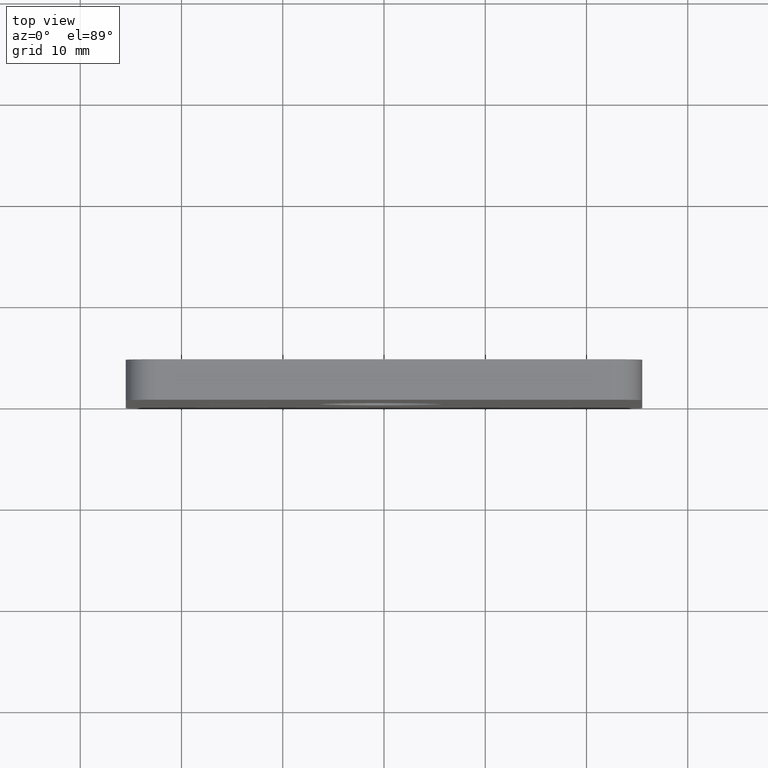
[diagram: clean part render]
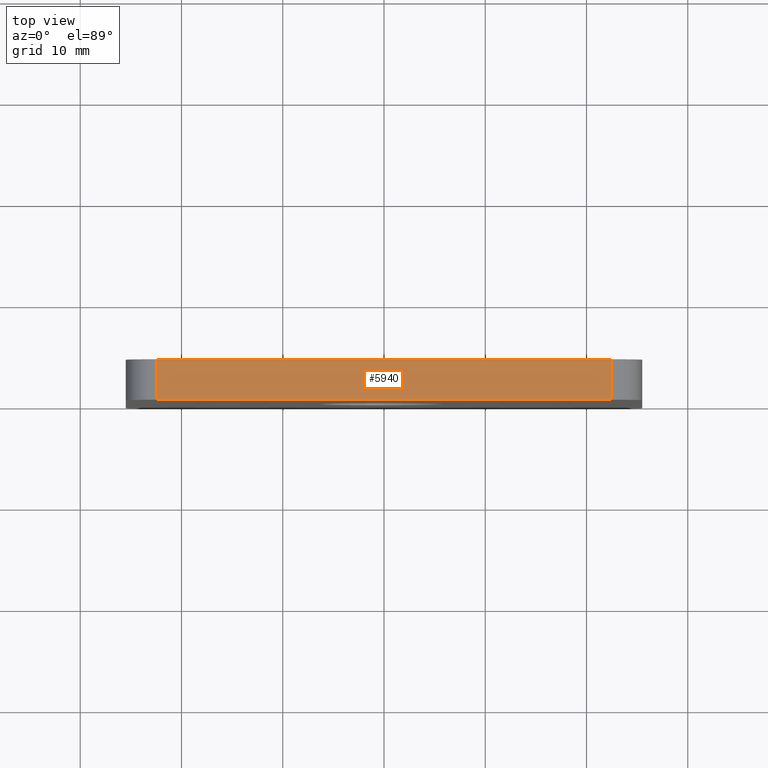
[diagram: same view with one face highlighted and labeled with its STEP entity id]
A machine part, top view. The second image highlights one B-rep face of the part: STEP entity #5940.
In plain terms, the highlighted planar face has unit normal (0, 0, -1).
Its self-contained STEP definition (entity closure, byte-faithful):
#100 = DIRECTION ( 'NONE',  ( 1.000000000000000000, 0.0000000000000000000, 0.0000000000000000000 ) ) ;
#144 = CARTESIAN_POINT ( 'NONE',  ( -25.49999999999999600, 4.000000000000000000, 25.49999999999999600 ) ) ;
#205 = VECTOR ( 'NONE', #10202, 1000.000000000000000 ) ;
#350 = CARTESIAN_POINT ( 'NONE',  ( 22.50000000000000700, 4.000000000000000000, 25.49999999999999600 ) ) ;
#557 = LINE ( 'NONE', #3613, #6849 ) ;
#578 = DIRECTION ( 'NONE',  ( -0.0000000000000000000, 1.000000000000000000, -0.0000000000000000000 ) ) ;
#750 = EDGE_CURVE ( 'NONE', #10056, #11414, #2006, .T. ) ;
#1486 = CARTESIAN_POINT ( 'NONE',  ( 22.50000000000000700, 0.0000000000000000000, 25.49999999999999600 ) ) ;
#1661 = ORIENTED_EDGE ( 'NONE', *, *, #6077, .T. ) ;
#2006 = LINE ( 'NONE', #144, #6017 ) ;
#3181 = EDGE_CURVE ( 'NONE', #3247, #11414, #15566, .T. ) ;
#3247 = VERTEX_POINT ( 'NONE', #1486 ) ;
#3613 = CARTESIAN_POINT ( 'NONE',  ( -25.49999999999999600, 0.0000000000000000000, 25.49999999999999600 ) ) ;
#4865 = VERTEX_POINT ( 'NONE', #11165 ) ;
#5940 = ADVANCED_FACE ( 'NONE', ( #6511 ), #10646, .F. ) ;
#6017 = VECTOR ( 'NONE', #7404, 1000.000000000000000 ) ;
#6077 = EDGE_CURVE ( 'NONE', #10056, #4865, #10334, .T. ) ;
#6511 = FACE_OUTER_BOUND ( 'NONE', #10383, .T. ) ;
#6849 = VECTOR ( 'NONE', #100, 1000.000000000000000 ) ;
#6944 = CARTESIAN_POINT ( 'NONE',  ( -22.49999999999999600, 4.000000000000000000, 25.49999999999999600 ) ) ;
#7325 = VECTOR ( 'NONE', #578, 1000.000000000000000 ) ;
#7404 = DIRECTION ( 'NONE',  ( 1.000000000000000000, 0.0000000000000000000, 0.0000000000000000000 ) ) ;
#7455 = ORIENTED_EDGE ( 'NONE', *, *, #3181, .T. ) ;
#10056 = VERTEX_POINT ( 'NONE', #6944 ) ;
#10133 = EDGE_CURVE ( 'NONE', #4865, #3247, #557, .T. ) ;
#10202 = DIRECTION ( 'NONE',  ( 0.0000000000000000000, -1.000000000000000000, 0.0000000000000000000 ) ) ;
#10334 = LINE ( 'NONE', #11178, #205 ) ;
#10383 = EDGE_LOOP ( 'NONE', ( #14804, #1661, #14270, #7455 ) ) ;
#10646 = PLANE ( 'NONE',  #11784 ) ;
#11165 = CARTESIAN_POINT ( 'NONE',  ( -22.49999999999999600, 0.0000000000000000000, 25.49999999999999600 ) ) ;
#11178 = CARTESIAN_POINT ( 'NONE',  ( -22.49999999999999600, 4.000000000000000000, 25.49999999999999600 ) ) ;
#11414 = VERTEX_POINT ( 'NONE', #350 ) ;
#11784 = AXIS2_PLACEMENT_3D ( 'NONE', #11836, #15589, #15415 ) ;
#11836 = CARTESIAN_POINT ( 'NONE',  ( -25.49999999999999600, 4.000000000000000000, 25.49999999999999600 ) ) ;
#12650 = CARTESIAN_POINT ( 'NONE',  ( 22.50000000000000700, 4.000000000000000000, 25.49999999999999600 ) ) ;
#14270 = ORIENTED_EDGE ( 'NONE', *, *, #10133, .T. ) ;
#14804 = ORIENTED_EDGE ( 'NONE', *, *, #750, .F. ) ;
#15415 = DIRECTION ( 'NONE',  ( -1.000000000000000000, 0.0000000000000000000, -0.0000000000000000000 ) ) ;
#15566 = LINE ( 'NONE', #12650, #7325 ) ;
#15589 = DIRECTION ( 'NONE',  ( 0.0000000000000000000, 0.0000000000000000000, -1.000000000000000000 ) ) ;